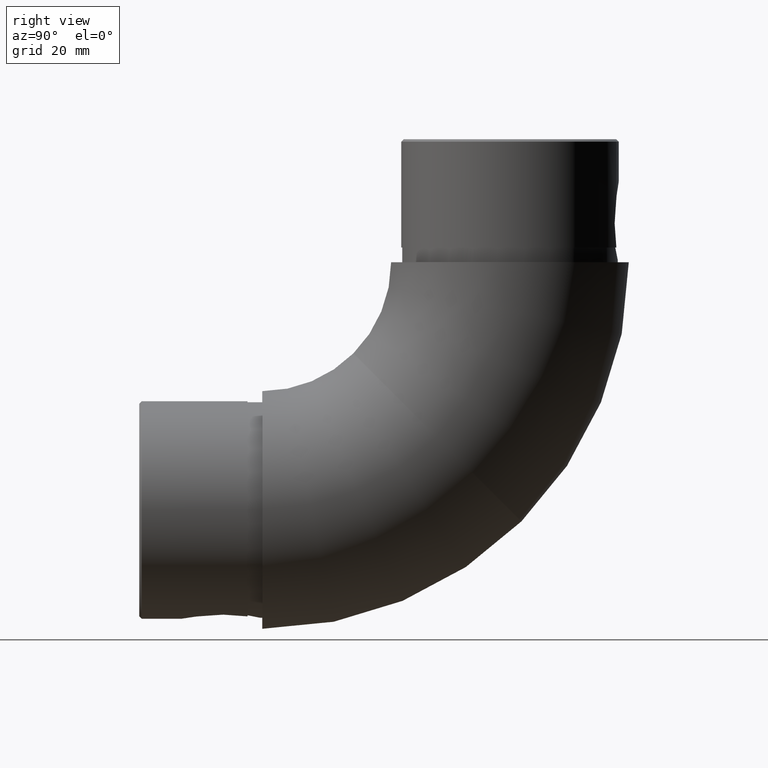
[diagram: clean part render]
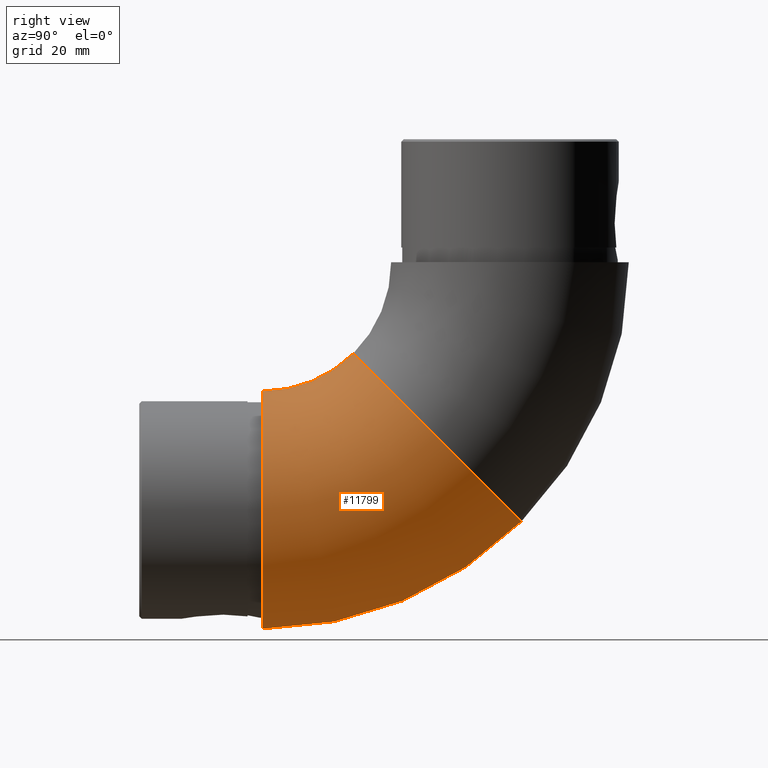
[diagram: same view with one face highlighted and labeled with its STEP entity id]
A machine part, right view. The second image highlights one B-rep face of the part: STEP entity #11799.
In plain terms, the highlighted toroidal blend (fillet) surface has major radius 50.35 mm and minor (blend) radius 24.15 mm.
Its self-contained STEP definition (entity closure, byte-faithful):
#515 = CARTESIAN_POINT ( 'NONE',  ( 0.0000000000000000000, -6.938893903907228400E-015, 50.34999999999999400 ) ) ;
#1775 = DIRECTION ( 'NONE',  ( -1.000000000000000000, -0.0000000000000000000, -0.0000000000000000000 ) ) ;
#2014 = AXIS2_PLACEMENT_3D ( 'NONE', #515, #1775, #10481 ) ;
#2159 = EDGE_LOOP ( 'NONE', ( #8480 ) ) ;
#3330 = DIRECTION ( 'NONE',  ( 0.0000000000000000000, 1.000000000000000000, 0.0000000000000000000 ) ) ;
#4404 = CARTESIAN_POINT ( 'NONE',  ( 0.0000000000000000000, 0.0000000000000000000, 24.14999999999999900 ) ) ;
#4481 = AXIS2_PLACEMENT_3D ( 'NONE', #10317, #10257, #5309 ) ;
#5013 = CIRCLE ( 'NONE', #4481, 24.14999999999999900 ) ;
#5309 = DIRECTION ( 'NONE',  ( 0.0000000000000000000, -0.7071067811865438000, 0.7071067811865512400 ) ) ;
#5617 = CARTESIAN_POINT ( 'NONE',  ( 0.0000000000000000000, 0.0000000000000000000, 0.0000000000000000000 ) ) ;
#5690 = VERTEX_POINT ( 'NONE', #4404 ) ;
#6681 = TOROIDAL_SURFACE ( 'NONE', #2014, 50.34999999999998700, 24.14999999999999900 ) ;
#7081 = CIRCLE ( 'NONE', #15644, 24.14999999999999900 ) ;
#7262 = FACE_OUTER_BOUND ( 'NONE', #2159, .T. ) ;
#7895 = EDGE_CURVE ( 'NONE', #8190, #8190, #5013, .T. ) ;
#8148 = DIRECTION ( 'NONE',  ( 0.0000000000000000000, 0.0000000000000000000, 1.000000000000000000 ) ) ;
#8190 = VERTEX_POINT ( 'NONE', #8191 ) ;
#8191 = CARTESIAN_POINT ( 'NONE',  ( 0.0000000000000000000, 18.52619766708744100, 31.82380233291236100 ) ) ;
#8480 = ORIENTED_EDGE ( 'NONE', *, *, #11561, .T. ) ;
#10004 = FACE_OUTER_BOUND ( 'NONE', #11834, .T. ) ;
#10257 = DIRECTION ( 'NONE',  ( 0.0000000000000000000, 0.7071067811865513500, 0.7071067811865438000 ) ) ;
#10317 = CARTESIAN_POINT ( 'NONE',  ( 0.0000000000000000000, 35.60282643274246800, 14.74717356725715000 ) ) ;
#10481 = DIRECTION ( 'NONE',  ( 0.0000000000000000000, 0.0000000000000000000, 1.000000000000000000 ) ) ;
#11561 = EDGE_CURVE ( 'NONE', #5690, #5690, #7081, .T. ) ;
#11799 = ADVANCED_FACE ( 'NONE', ( #10004, #7262 ), #6681, .T. ) ;
#11834 = EDGE_LOOP ( 'NONE', ( #13798 ) ) ;
#13798 = ORIENTED_EDGE ( 'NONE', *, *, #7895, .F. ) ;
#15644 = AXIS2_PLACEMENT_3D ( 'NONE', #5617, #3330, #8148 ) ;